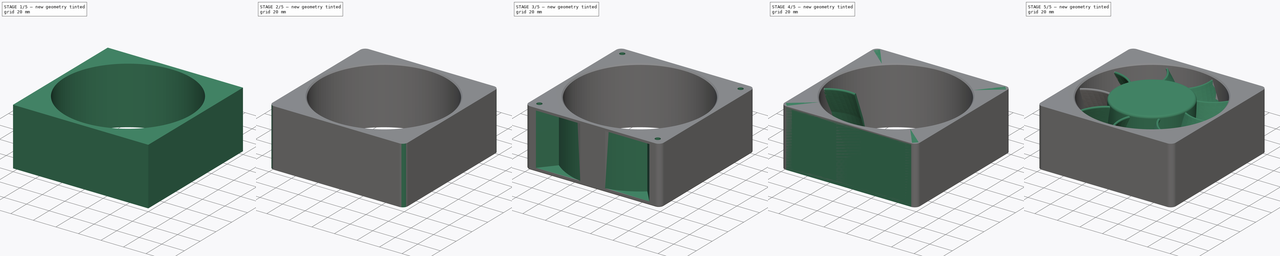
[diagram: build sequence overview — one tinted view per stage of 5, left to right]
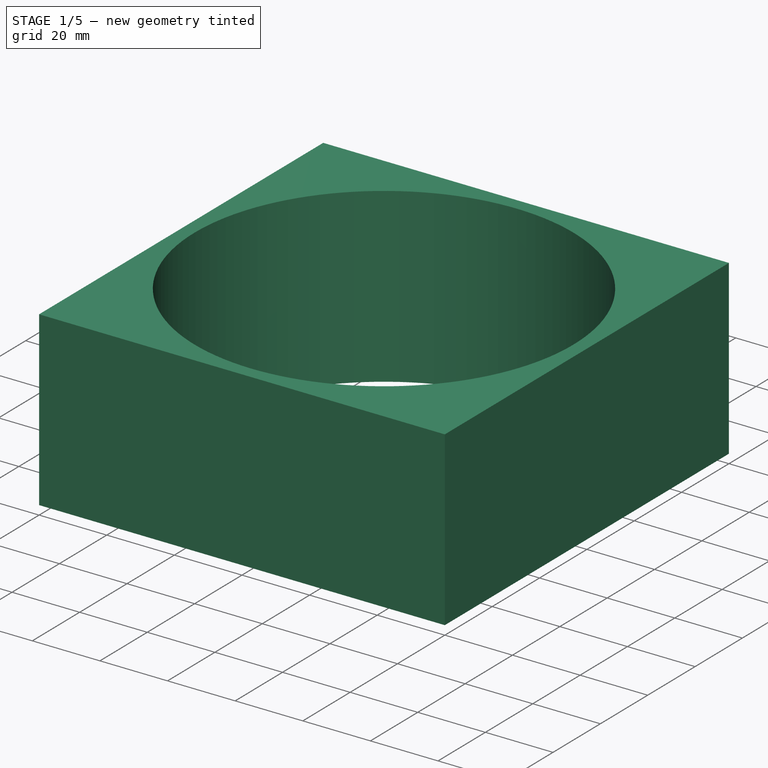
[diagram: stage 1 of 5 — iso view after this stage's code; geometry added in this stage tinted green]
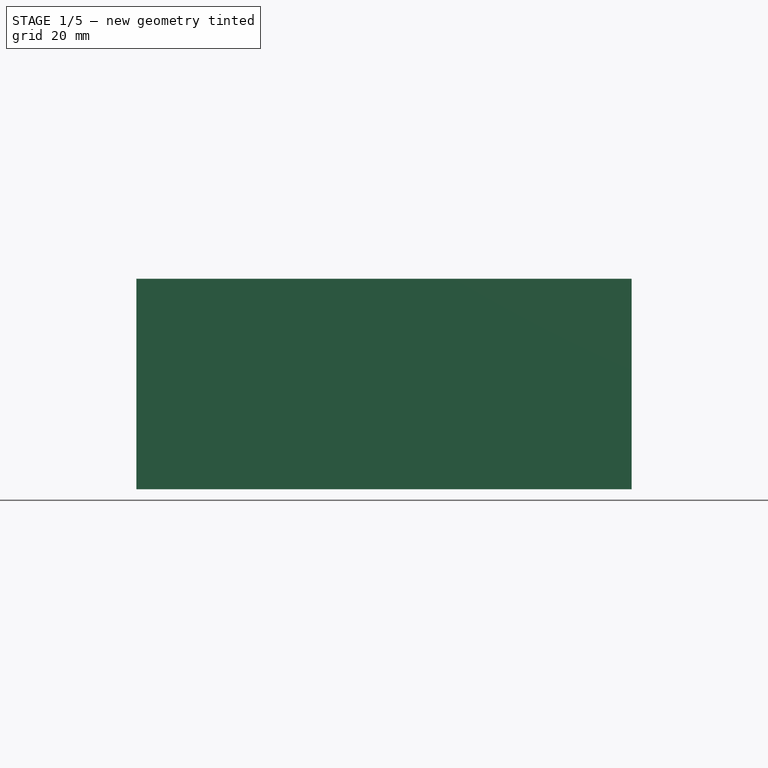
[diagram: stage 1 of 5 — front view after this stage's code; geometry added in this stage tinted green]
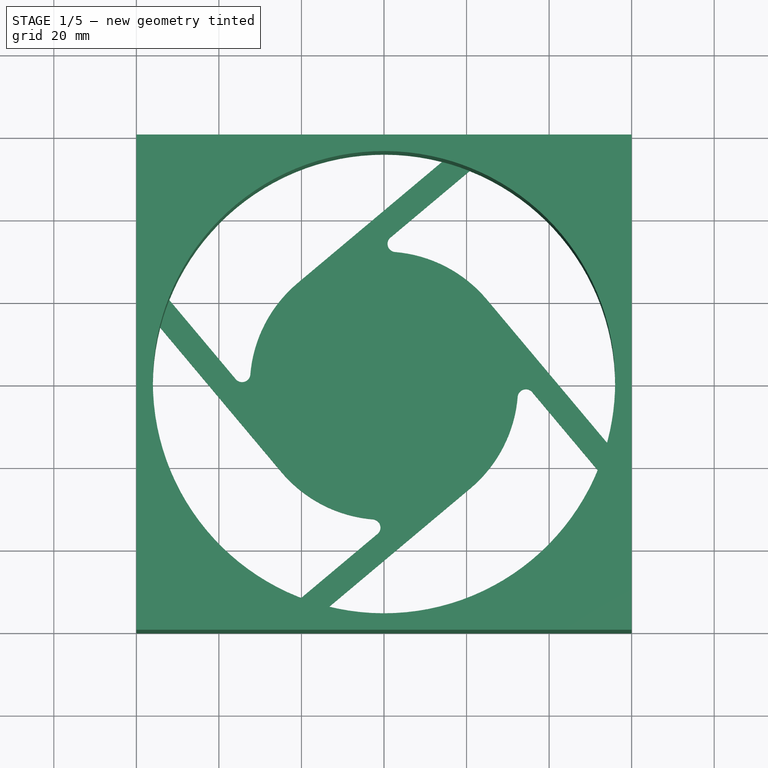
[diagram: stage 1 of 5 — top view after this stage's code; geometry added in this stage tinted green]
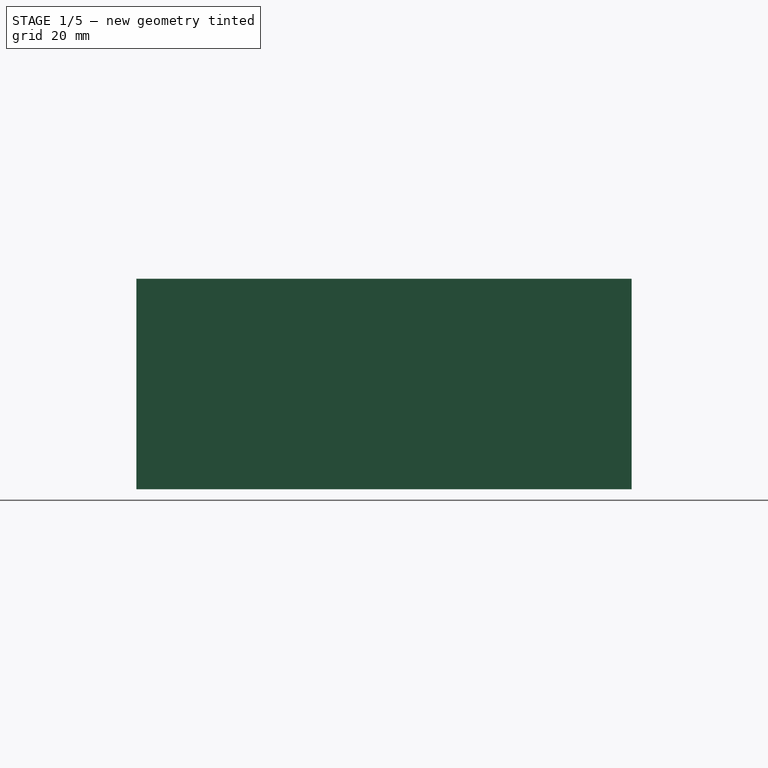
[diagram: stage 1 of 5 — right view after this stage's code; geometry added in this stage tinted green]
FCSTD DOCUMENT  (FreeCAD 0.21R33771 (Git))
Label: Fan_Parametric
License: All rights reserved
LicenseURL: http://en.wikipedia.org/wiki/All_rights_reserved
objects: Sketcher::SketchObject×10, PartDesign::Fillet×5, PartDesign::Body×3, PartDesign::Pocket×3, PartDesign::MultiTransform×3, PartDesign::Pad×2, PartDesign::Plane×2, PartDesign::Groove×2, PartDesign::PolarPattern×2, Spreadsheet::Sheet×1, PartDesign::AdditivePipe×1, Part::FeaturePython×1, PartDesign::Chamfer×1, PartDesign::Mirrored×1
note: 50 computed .brp shape members not serialized (recipe doc carries the construction recipe); baked Part::Feature solids carry a one-line shape summary decoded from their .brp

FEATURE [Sketcher::SketchObject] Sketch009  label="Sketch_OuterFrame"
  FullyConstrained = true
  MapMode = 5
  Support = -> [XY_Plane003]
  expr: Constraints[9] = Spreadsheet.Lh
  sketch-geometry (4):
    g0: LineSegment StartX=-60 StartY=60 StartZ=0 EndX=60 EndY=60 EndZ=0
    g1: LineSegment StartX=60 StartY=60 StartZ=0 EndX=60 EndY=-60 EndZ=0
    g2: LineSegment StartX=60 StartY=-60 StartZ=0 EndX=-60 EndY=-60 EndZ=0
    g3: LineSegment StartX=-60 StartY=-60 StartZ=0 EndX=-60 EndY=60 EndZ=0
  constraints (10):
    c: Coincident(g0,g1)
    c: Coincident(g1,g2)
    c: Coincident(g2,g3)
    c: Coincident(g3,g0)
    c: Horizontal(g2)
    c: Vertical(g3)
    c: Equal(g0,g1)
    c: Symmetric(g0,g1,g-1)
    c: Symmetric(g0,g0,g-2)
    c: DistanceY(g1,g1) = 120
FEATURE [PartDesign::Pad] Pad001  label="Pad__OuterFrame"
  AllowMultiFace = false
  Direction = (0,0,1)
  Length = 50
  Length2 = 1
  Profile = -> Sketch009
  Type = 4
FEATURE [Sketcher::SketchObject] Sketch010  label="Sketch_InnerCylinder"
  FullyConstrained = true
  MapMode = 5
  Placement = pos=(0,0,50) rot=(0,0,1;0rad)
  Support = -> [Pad001]
  expr: Constraints[1] = Spreadsheet.Dom
  sketch-geometry (1):
    g0: Circle CenterX=0 CenterY=0 CenterZ=0 NormalX=0 NormalY=0 NormalZ=1 AngleXU=0 Radius=56
  constraints (2):
    c: Coincident(g0,g-1)
    c: Diameter(g0) = 112
FEATURE [PartDesign::Pocket] Pocket  label="Pocket_InnerCylinder"
  AllowMultiFace = false
  BaseFeature = -> Pad001
  Direction = (0,0,-1)
  Length = 49
  Length2 = 100
  Profile = -> Sketch010
  ReferenceAxis = -> Sketch010 [N_Axis]
  Type = 0
  expr: Length = <<Pad__OuterFrame>>.Length - 1 mm
FEATURE [Sketcher::SketchObject] Sketch011  label="Sketch_FrameRear"
  FullyConstrained = true
  MapMode = 5
  Placement = pos=(0,0,-1) rot=(1,0,0;3.14159rad)
  Support = -> [Pocket]
  expr: Constraints[1] = Spreadsheet.Dom
  expr: Constraints[20] = Spreadsheet.Lh / 20
  expr: Constraints[3] = Spreadsheet.Di
  sketch-geometry (8):
    g0: Circle CenterX=0 CenterY=0 CenterZ=0 NormalX=0 NormalY=0 NormalZ=1 AngleXU=0 Radius=56
    g1: Circle CenterX=0 CenterY=0 CenterZ=0 NormalX=0 NormalY=0 NormalZ=1 AngleXU=0 Radius=32.5
    g2: LineSegment StartX=20.8906 StartY=24.8964 StartZ=0 EndX=-14.0443 EndY=54.2103 EndZ=0
    g3: ArcOfCircle CenterX=0 CenterY=0 CenterZ=0 NormalX=0 NormalY=0 NormalZ=1 AngleXU=0 Radius=56 StartAngle=0.379729 EndAngle=1.82429
    g4: ArcOfCircle CenterX=0 CenterY=0 CenterZ=0 NormalX=0 NormalY=0 NormalZ=1 AngleXU=0 Radius=32.5 StartAngle=0.0829606 EndAngle=0.872663
    g5: LineSegment StartX=52.0109 StartY=20.7574 StartZ=0 EndX=35.9134 EndY=1.57328 EndZ=0
    g6: ArcOfCircle CenterX=34.3813 CenterY=2.85886 CenterZ=0 NormalX=0 NormalY=0 NormalZ=1 AngleXU=0 Radius=2 StartAngle=3.22455 EndAngle=5.58505
    g7: LineSegment StartX=24.8964 StartY=-20.8907 StartZ=0 EndX=54.2103 EndY=14.0443 EndZ=0
  constraints (22):
    c: Coincident(g0,g-1)
    c: Diameter(g0) = 112
    c: Coincident(g1,g-1)
    c: Diameter(g1) = 65
    c: PointOnObject(g2,g1)
    c: PointOnObject(g2,g0)
    c: Tangent(g2,g1)
    c: Angle(g2,g-1) = 0.698132
    c: Coincident(g3,g-1)
    c: Coincident(g3,g2)
    c: Coincident(g4,g3)
    c: Coincident(g4,g2)
    c: Coincident(g3,g5)
    c: Tangent(g5,g6) = 1.5708
    c: Tangent(g6,g4) = 1.5708
    c: PointOnObject(g7,g1)
    c: PointOnObject(g7,g0)
    c: Tangent(g7,g1)
    c: Angle(g2,g7) = 1.5708
    c: Parallel(g5,g7)
    c: Distance(g5,g7) = 6
    c: Radius(g6) = 2
FEATURE [PartDesign::Pocket] Pocket001  label="Pocket_FrameRear"
  AllowMultiFace = false
  BaseFeature = -> Pocket
  Direction = (0,0,1)
  Length = 7
  Length2 = 96
  Midplane = true
  Profile = -> Sketch011
  Type = 1
FEATURE [PartDesign::PolarPattern] PolarPattern
  Angle = 360
  Axis = -> Sketch011 [N_Axis]
  Occurrences = 4
FEATURE [PartDesign::MultiTransform] MultiTransform
  BaseFeature = -> Pocket001
  Originals = -> [Pocket001]
  Transformations = -> [PolarPattern]
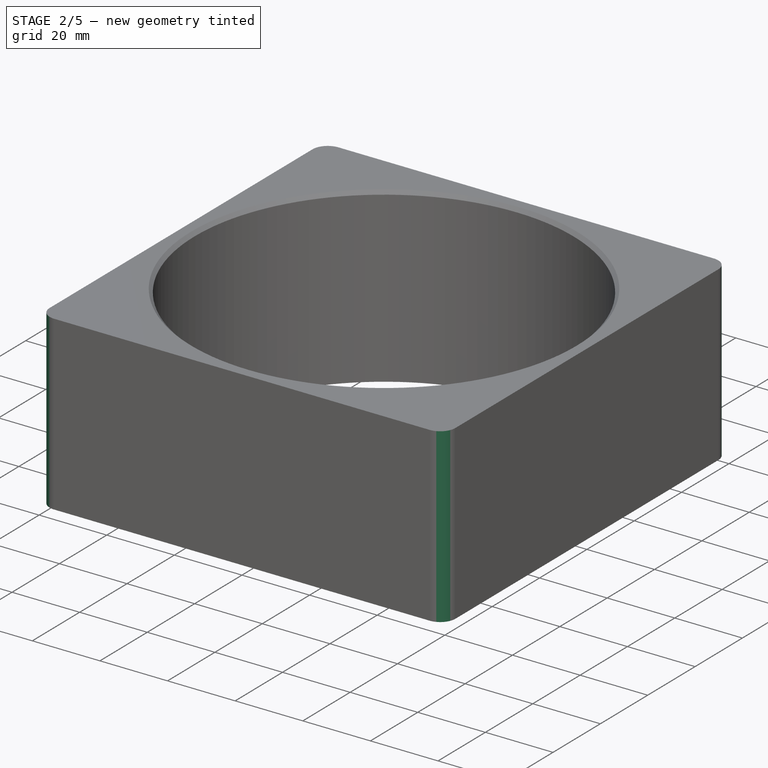
[diagram: stage 2 of 5 — iso view after this stage's code; geometry added in this stage tinted green]
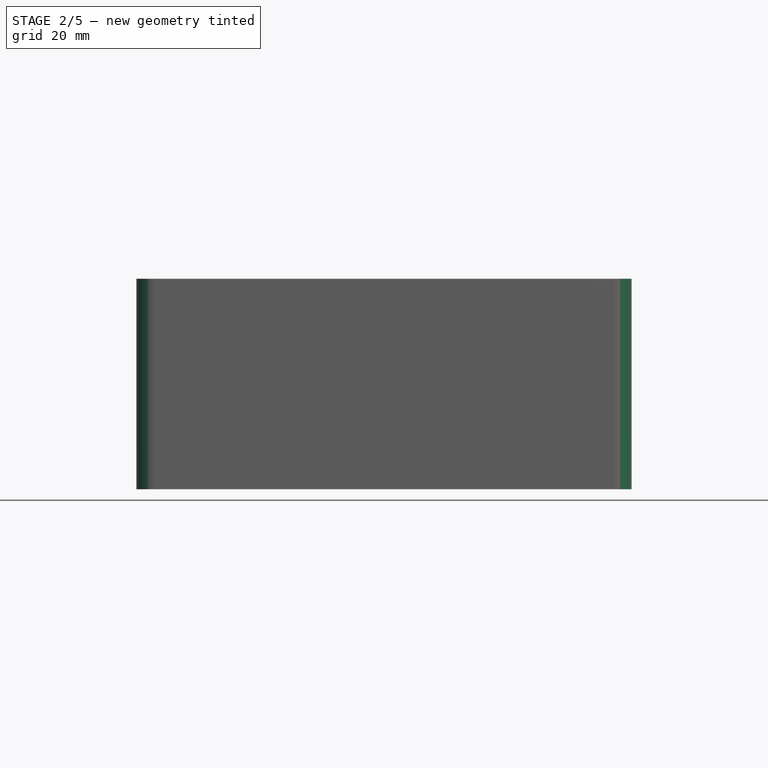
[diagram: stage 2 of 5 — front view after this stage's code; geometry added in this stage tinted green]
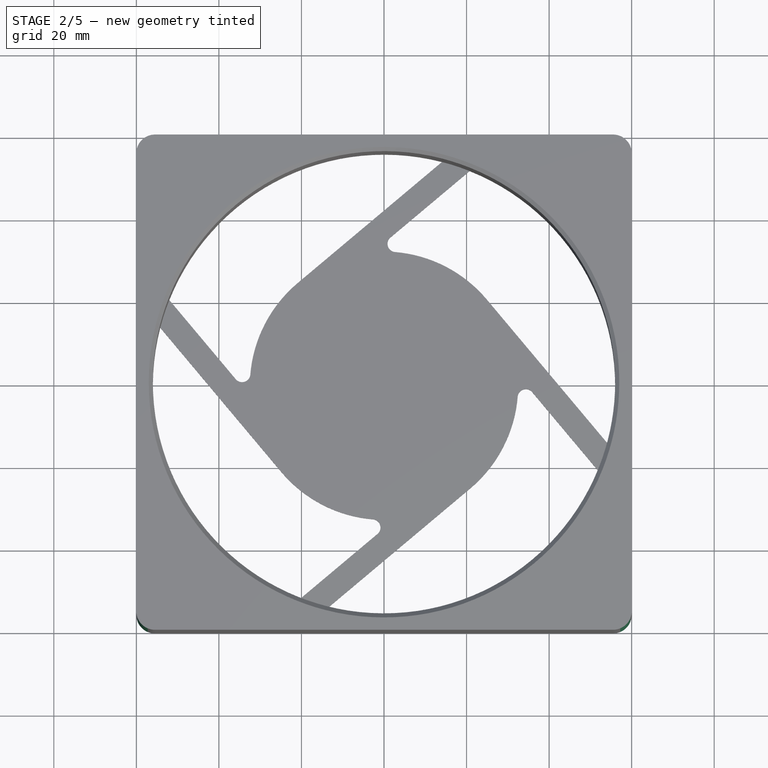
[diagram: stage 2 of 5 — top view after this stage's code; geometry added in this stage tinted green]
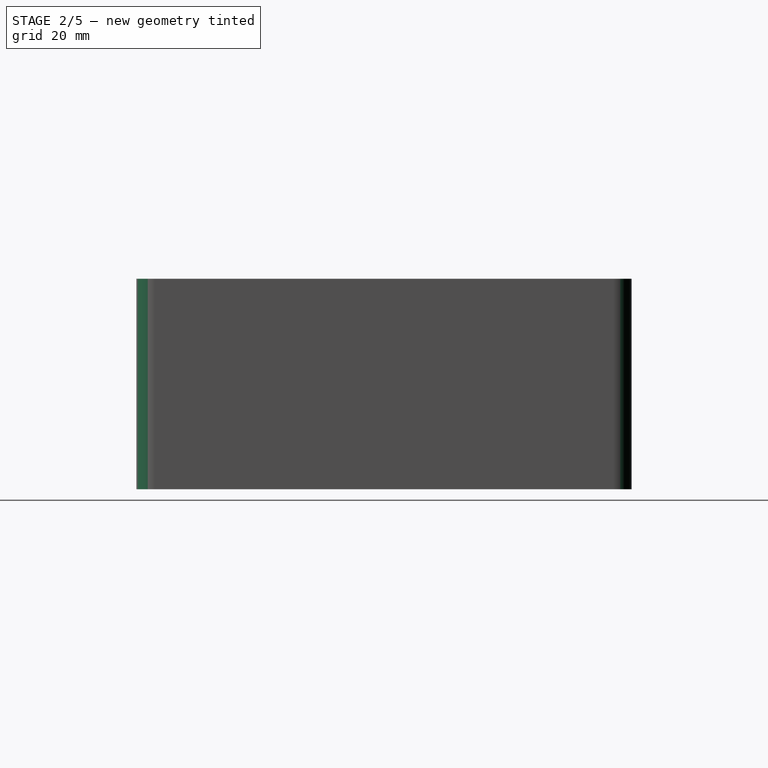
[diagram: stage 2 of 5 — right view after this stage's code; geometry added in this stage tinted green]
FEATURE [PartDesign::Fillet] Fillet001  label="Fillet_InnerCylRear"
  Base = -> MultiTransform [Edge24,Edge23,Edge22,Edge26,Edge15,Edge13,Edge19,Edge21,Edge31,Edge29,Edge14,Edge12,Edge17,Edge18,Edge28,Edge27]
  BaseFeature = -> MultiTransform
  Radius = 0.2
  SupportTransform = false
  UseAllEdges = false
FEATURE [PartDesign::Fillet] Fillet002  label="Fillet_OuterEdges"
  Base = -> Fillet001 [Edge46,Edge51,Edge49,Edge47]
  BaseFeature = -> Fillet001
  Radius = 4.5
  SupportTransform = false
  UseAllEdges = false
  expr: Radius = Spreadsheet.Ddh
FEATURE [PartDesign::Chamfer] Chamfer  label="Chamfer_InnerCylFront"
  Angle = 45
  Base = -> Fillet002 [Edge87,Edge104,Edge105,Edge106,Edge107,Edge108,Edge109,Edge102,Edge110,Edge103]
  BaseFeature = -> Fillet002
  ChamferType = 0
  FlipDirection = false
  Size = 1
  Size2 = 1
  SupportTransform = false
  UseAllEdges = false
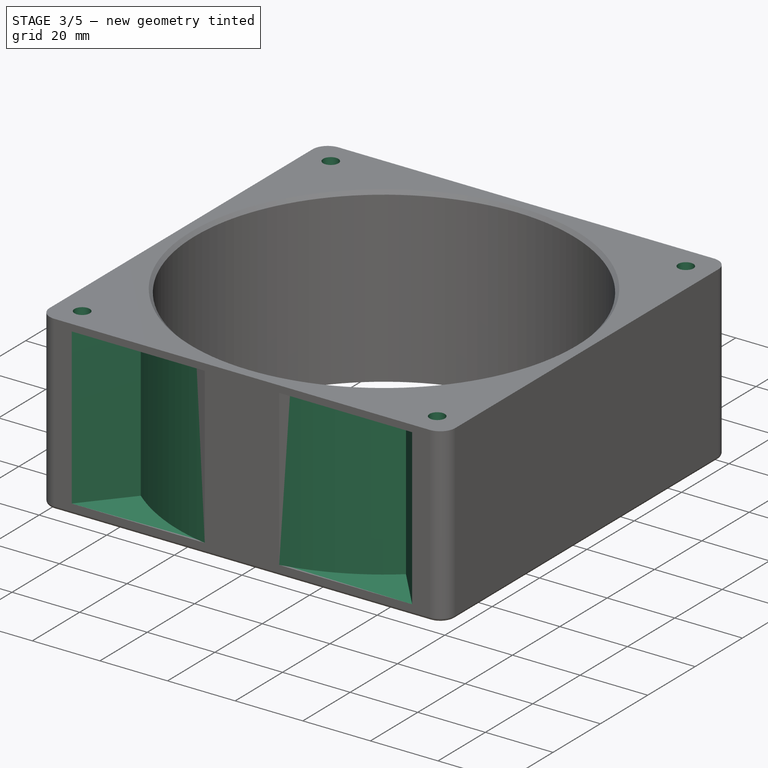
[diagram: stage 3 of 5 — iso view after this stage's code; geometry added in this stage tinted green]
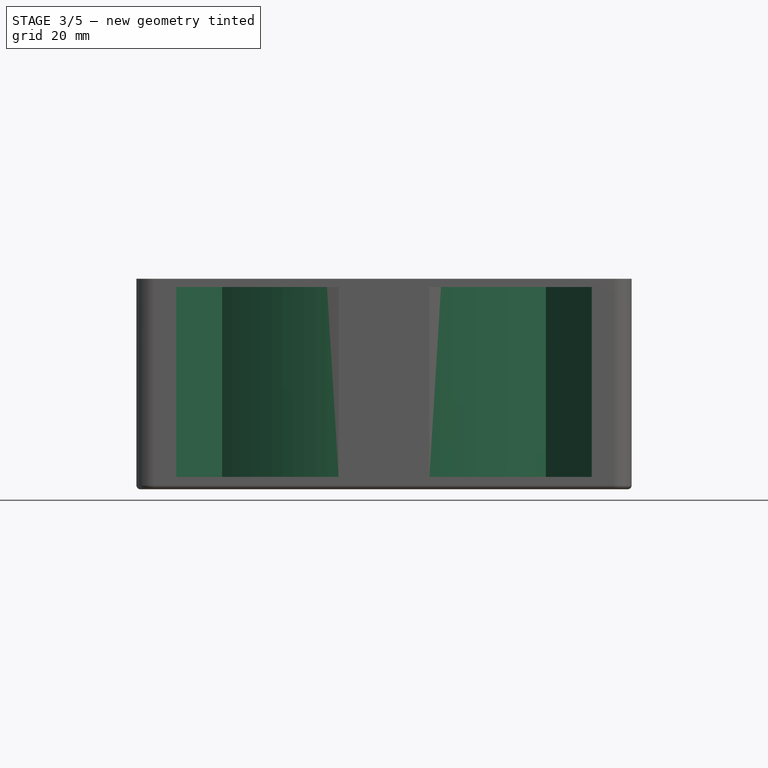
[diagram: stage 3 of 5 — front view after this stage's code; geometry added in this stage tinted green]
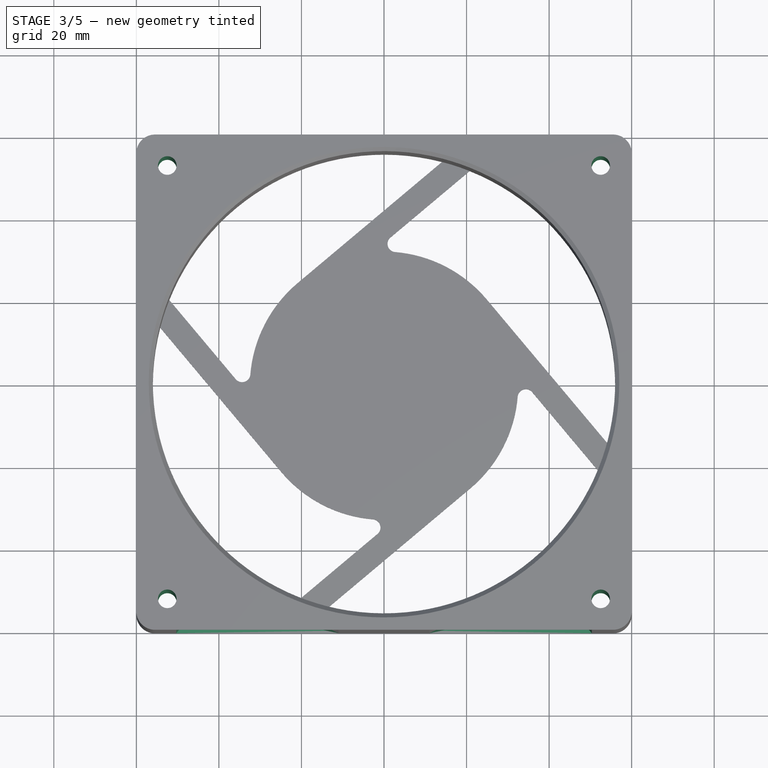
[diagram: stage 3 of 5 — top view after this stage's code; geometry added in this stage tinted green]
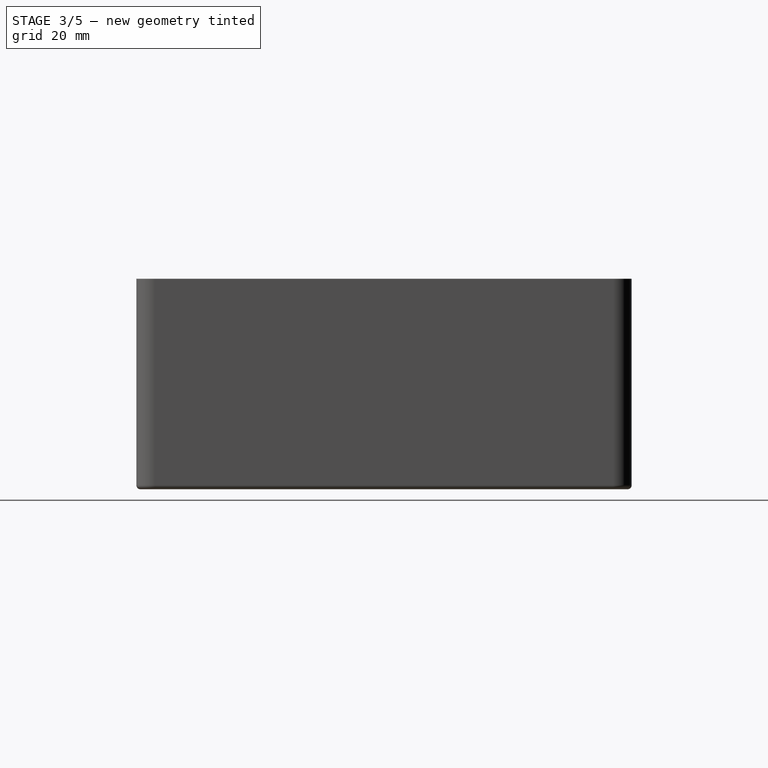
[diagram: stage 3 of 5 — right view after this stage's code; geometry added in this stage tinted green]
FEATURE [PartDesign::Fillet] Fillet004  label="Fillet_OuterFrameRear"
  Base = -> Chamfer [Edge43,Edge39,Edge36,Edge41,Edge45,Edge49,Edge51,Edge47]
  BaseFeature = -> Chamfer
  Radius = 1
  SupportTransform = false
  UseAllEdges = false
FEATURE [Sketcher::SketchObject] Sketch012  label="Sketch_MountHoles"
  FullyConstrained = true
  MapMode = 5
  Placement = pos=(0,0,-1) rot=(1,0,0;3.14159rad)
  Support = -> [Fillet004]
  expr: Constraints[1] = Spreadsheet.Ldh
  expr: Constraints[2] = Spreadsheet.Ldh / 2
  expr: Constraints[4] = Spreadsheet.Ddh
  sketch-geometry (2):
    g0: Circle CenterX=-52.5 CenterY=52.5 CenterZ=0 NormalX=0 NormalY=0 NormalZ=1 AngleXU=0 Radius=2.25
    g1: Circle CenterX=52.5 CenterY=52.5 CenterZ=0 NormalX=0 NormalY=0 NormalZ=1 AngleXU=0 Radius=2.25
  constraints (5):
    c: Symmetric(g0,g1,g-2)
    c: DistanceX(g0,g1) = 105
    c: DistanceY(g-1,g1) = 52.5
    c: Equal(g0,g1)
    c: Diameter(g0) = 4.5
FEATURE [PartDesign::Pocket] Pocket002  label="Pocket_MountHoles"
  AllowMultiFace = false
  BaseFeature = -> Fillet004
  Direction = (0,0,1)
  Length = 5
  Length2 = 100
  Profile = -> Sketch012
  Type = 1
FEATURE [PartDesign::Mirrored] Mirrored  label="Mirrored_MountHoles"
  MirrorPlane = -> XZ_Plane003
FEATURE [PartDesign::MultiTransform] MultiTransform001  label="MultiTransform_MountHoles"
  BaseFeature = -> Pocket002
  Originals = -> [Pocket002]
  Transformations = -> [Mirrored]
FEATURE [Sketcher::SketchObject] Sketch013  label="Sketch_OuterSideGroove"
  FullyConstrained = true
  MapMode = 5
  Placement = pos=(0,0,0) rot=(0.57735,0.57735,0.57735;2.0944rad)
  Support = -> [YZ_Plane003]
  expr: Constraints[11] = <<Pad__OuterFrame>>.Length / 2
  expr: Constraints[12] = Spreadsheet.Lh / 2 + 1
  expr: Constraints[14] = <<Spreadsheet_Fan_dim>>.Lh / 2 * 1.5
  expr: Constraints[8] = <<Pad__OuterFrame>>.Length - 4 mm
  sketch-geometry (5):
    g0: LineSegment StartX=-90 StartY=48 StartZ=0 EndX=-61 EndY=48 EndZ=0
    g1: LineSegment StartX=-61 StartY=48 StartZ=0 EndX=-61 EndY=2 EndZ=0
    g2: LineSegment StartX=-61 StartY=2 StartZ=0 EndX=-90 EndY=2 EndZ=0
    g3: LineSegment StartX=-90 StartY=2 StartZ=0 EndX=-90 EndY=48 EndZ=0
    g4: LineSegment StartX=-90 StartY=25 StartZ=0 EndX=-61 EndY=25 EndZ=0
  constraints (15):
    c: Coincident(g0,g1)
    c: Coincident(g1,g2)
    c: Coincident(g2,g3)
    c: Coincident(g3,g0)
    c: Horizontal(g0)
    c: Horizontal(g2)
    c: Vertical(g1)
    c: Vertical(g3)
    c: DistanceY(g3,g3) = 46
    c: PointOnObject(g4,g3)
    c: Symmetric(g0,g2,g4)
    c: DistanceY(g-1,g4) = 25
    c: DistanceX(g1,g-1) = 61
    c: PointOnObject(g4,g1)
    c: DistanceX(g0,g-1) = 90
FEATURE [PartDesign::Groove] Groove001  label="Groove_OuterSide"
  AllowMultiFace = false
  Angle = 80
  Axis = (-2e-16,3e-16,1)
  Base = (0,0,0)
  BaseFeature = -> MultiTransform001
  Midplane = true
  Profile = -> Sketch013
  ReferenceAxis = -> Sketch013 [V_Axis]
  expr: Angle = <<Spreadsheet_Fan_dim>>.GrAngle
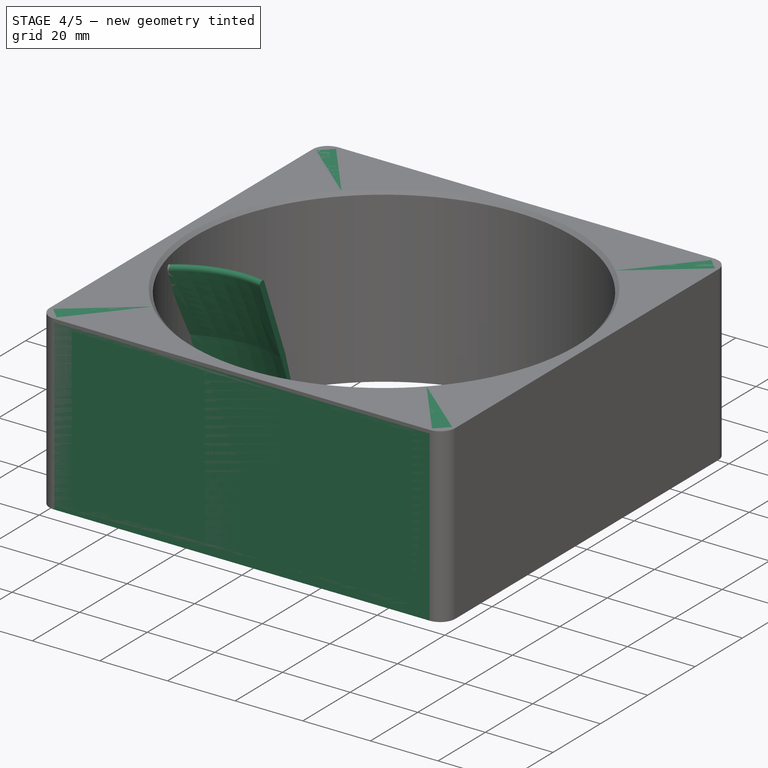
[diagram: stage 4 of 5 — iso view after this stage's code; geometry added in this stage tinted green]
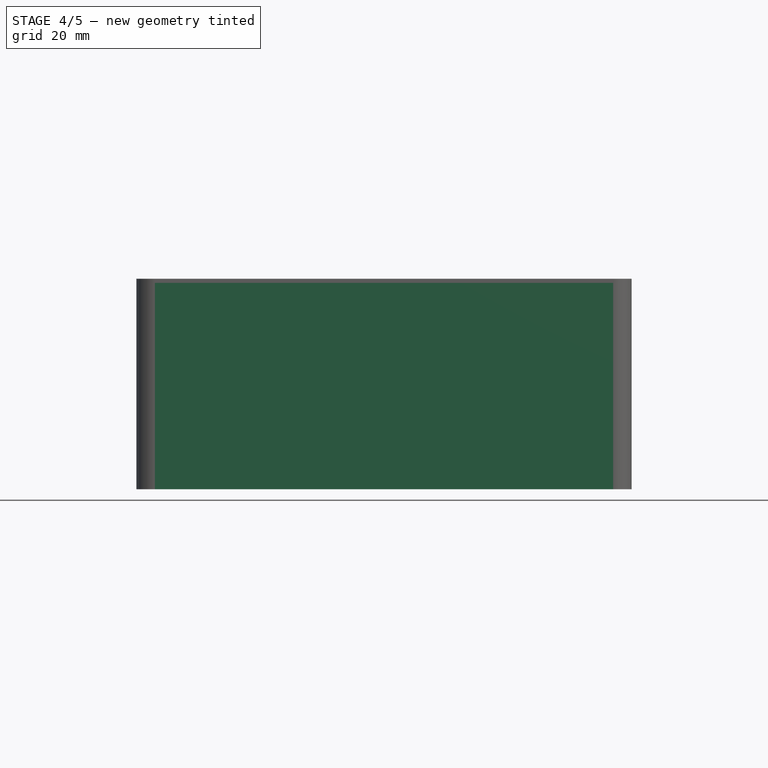
[diagram: stage 4 of 5 — front view after this stage's code; geometry added in this stage tinted green]
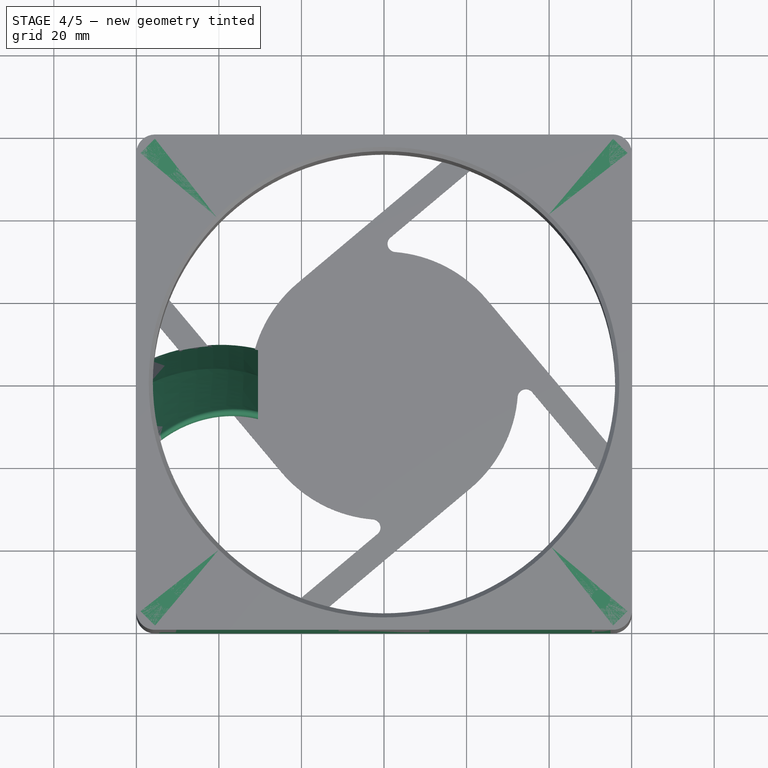
[diagram: stage 4 of 5 — top view after this stage's code; geometry added in this stage tinted green]
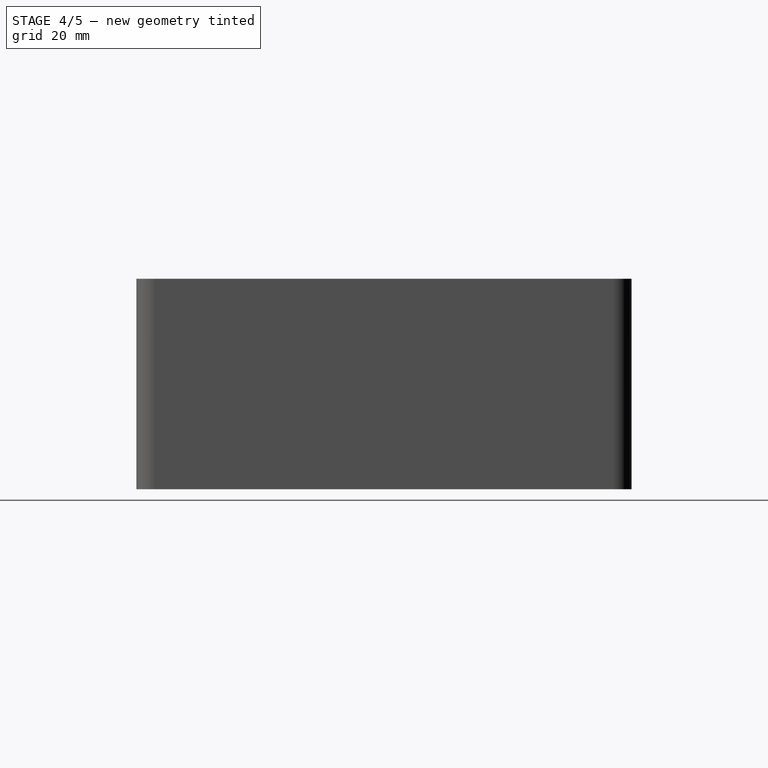
[diagram: stage 4 of 5 — right view after this stage's code; geometry added in this stage tinted green]
FEATURE [PartDesign::Body] Body  label="Body_inner_Fan_Motor_Housing"
  Group = -> [Sketch,Pad,Fillet]
  Origin = -> Origin
  Tip = -> Fillet
FEATURE [PartDesign::Plane] DatumPlane  label="DatumPlane_inner_Blade_Sketch"
  AttachmentOffset = pos=(0,0,-30.54) rot=(0,0,1;0rad)
  Length = 60
  MapMode = 5
  Placement = pos=(-30.54,6.8e-15,-6.8e-15) rot=(0.57735,0.57735,0.57735;2.0944rad)
  ResizeMode = 0
  Support = -> [YZ_Plane002]
  Width = 60
  expr: .AttachmentOffset.Base.z = -Spreadsheet.di
FEATURE [PartDesign::Plane] DatumPlane001  label="DatumPlane_outer_Blade_Sketch"
  AttachmentOffset = pos=(0,0,-57) rot=(0,0,1;0rad)
  Length = 60
  MapMode = 5
  Placement = pos=(-57,1.27e-14,-1.27e-14) rot=(0.57735,0.57735,0.57735;2.0944rad)
  ResizeMode = 0
  Support = -> [YZ_Plane002]
  Width = 60
  expr: .AttachmentOffset.Base.z = -Spreadsheet.do
FEATURE [Sketcher::SketchObject] Sketch005  label="Sketch_inner_Blade"
  FullyConstrained = true
  MapMode = 5
  Placement = pos=(-30.54,6.8e-15,-6.8e-15) rot=(0.57735,0.57735,0.57735;2.0944rad)
  Support = -> [DatumPlane]
  expr: Constraints[10] = Spreadsheet.hi * 0.8
  expr: Constraints[18] = Spreadsheet.Hi / 2
  expr: Constraints[9] = Spreadsheet.Hi
  sketch-geometry (9):
    g0: LineSegment StartX=-8.89252 StartY=0 StartZ=0 EndX=8.89252 EndY=0 EndZ=0
    g1: LineSegment StartX=8.89252 StartY=0 StartZ=0 EndX=8.89252 EndY=47 EndZ=0
    g2: LineSegment StartX=8.89252 StartY=47 StartZ=0 EndX=-8.89252 EndY=47 EndZ=0
    g3: LineSegment StartX=-8.89252 StartY=47 StartZ=0 EndX=-8.89252 EndY=0 EndZ=0
    g4: LineSegment StartX=8.89252 StartY=0 StartZ=0 EndX=0 EndY=23.5 EndZ=0
    g5: LineSegment StartX=0 StartY=23.5 StartZ=0 EndX=-8.82144 EndY=45.6297 EndZ=0
    g6: ArcOfCircle CenterX=-7.89252 CenterY=46 CenterZ=0 NormalX=0 NormalY=0 NormalZ=1 AngleXU=0 Radius=1 StartAngle=0.373532 EndAngle=3.52091
    g7: LineSegment StartX=-6.96148 StartY=46.3649 StartZ=0 EndX=2 EndY=23.5 EndZ=0
    g8: LineSegment StartX=2 StartY=23.5 StartZ=0 EndX=8.89252 EndY=0 EndZ=0
  constraints (24):
    c: Coincident(g0,g1)
    c: Coincident(g1,g2)
    c: Coincident(g2,g3)
    c: Coincident(g3,g0)
    c: Horizontal(g2)
    c: Vertical(g1)
    c: Vertical(g3)
    c: PointOnObject(g0,g-1)
    c: Symmetric(g0,g0,g-2)
    c: DistanceY(g1,g1) = 47
    c: DistanceX(g0,g0) = 17.785
    c: Tangent(g5,g6) = 1.5708
    c: Tangent(g6,g7) = 1.5708
    c: Coincident(g8,g4)
    c: Coincident(g5,g4)
    c: Coincident(g7,g8)
    c: Horizontal(g4,g7)
    c: DistanceX(g4,g7) = 2
    c: DistanceY(g4,g4) = 23.5
    c: Diameter(g6) = 2
    c: Coincident(g4,g0)
    c: PointOnObject(g4,g-2)
    c: DistanceY(g6,g2) = 1
    c: DistanceX(g2,g6) = 1
FEATURE [Sketcher::SketchObject] Sketch006  label="Sketch_outer_Blade"
  FullyConstrained = true
  MapMode = 5
  Placement = pos=(-57,1.27e-14,-1.27e-14) rot=(0.57735,0.57735,0.57735;2.0944rad)
  Support = -> [DatumPlane001]
  expr: Constraints[19] = Spreadsheet.Hi / 2
  expr: Constraints[21] = Spreadsheet.ho / 4
  expr: Constraints[8] = Spreadsheet.Hi
  expr: Constraints[9] = Spreadsheet.ho * 0.8
  sketch-geometry (9):
    g0: LineSegment StartX=-16.597 StartY=0 StartZ=0 EndX=16.597 EndY=0 EndZ=0
    g1: LineSegment StartX=16.597 StartY=0 StartZ=0 EndX=16.597 EndY=47 EndZ=0
    g2: LineSegment StartX=16.597 StartY=47 StartZ=0 EndX=-16.597 EndY=47 EndZ=0
    g3: LineSegment StartX=-16.597 StartY=47 StartZ=0 EndX=-16.597 EndY=0 EndZ=0
    g4: LineSegment StartX=6.22389 StartY=0 StartZ=0 EndX=0 EndY=23.5 EndZ=0
    g5: LineSegment StartX=0 StartY=23.5 StartZ=0 EndX=-14.7549 EndY=46.5393 EndZ=0
    g6: ArcOfCircle CenterX=-15.597 CenterY=46 CenterZ=0 NormalX=0 NormalY=0 NormalZ=1 AngleXU=0 Radius=1 StartAngle=0.569614 EndAngle=3.70716
    g7: LineSegment StartX=-16.4413 StartY=45.4641 StartZ=0 EndX=-2.5 EndY=23.5 EndZ=0
    g8: LineSegment StartX=-2.5 StartY=23.5 StartZ=0 EndX=6.22389 EndY=0 EndZ=0
  constraints (25):
    c: Coincident(g0,g1)
    c: Coincident(g1,g2)
    c: Coincident(g2,g3)
    c: Coincident(g3,g0)
    c: Horizontal(g0)
    c: Vertical(g1)
    c: Vertical(g3)
    c: Symmetric(g1,g2,g-2)
    c: DistanceY(g1,g1) = 47
    c: DistanceX(g0,g0) = 33.1941
    c: Coincident(g4,g5)
    c: Tangent(g5,g6) = -1.5708
    c: Tangent(g6,g7) = -1.5708
    c: Coincident(g7,g8)
    c: Coincident(g8,g4)
    c: Diameter(g6) = 2
    c: DistanceY(g6,g2) = 1
    c: DistanceX(g2,g6) = 1
    c: DistanceX(g7,g4) = 2.5
    c: DistanceY(g4,g7) = 23.5
    c: PointOnObject(g4,g0)
    c: DistanceX(g4,g0) = 10.3732
    c: PointOnObject(g0,g-1)
    c: PointOnObject(g4,g-2)
    c: Horizontal(g4,g7)
FEATURE [Sketcher::SketchObject] Sketch007
  FullyConstrained = true
  MapMode = 5
  Placement = pos=(0,0,0) rot=(0.57735,0.57735,0.57735;2.0944rad)
  Support = -> [YZ_Plane002]
  expr: Constraints[8] = Spreadsheet.Hi * 2
  expr: Constraints[9] = Spreadsheet.Do / 2
  sketch-geometry (4):
    g0: LineSegment StartX=57 StartY=47 StartZ=0 EndX=77 EndY=47 EndZ=0
    g1: LineSegment StartX=77 StartY=47 StartZ=0 EndX=77 EndY=-47 EndZ=0
    g2: LineSegment StartX=77 StartY=-47 StartZ=0 EndX=57 EndY=-47 EndZ=0
    g3: LineSegment StartX=57 StartY=-47 StartZ=0 EndX=57 EndY=47 EndZ=0
  constraints (11):
    c: Coincident(g0,g1)
    c: Coincident(g1,g2)
    c: Coincident(g2,g3)
    c: Coincident(g3,g0)
    c: Horizontal(g0)
    c: Horizontal(g2)
    c: Vertical(g1)
    c: Symmetric(g0,g2,g-1)
    c: DistanceY(g1,g1) = 94
    c: DistanceX(g-1,g2) = 57
    c: DistanceX(g0,g0) = 20
FEATURE [Sketcher::SketchObject] Sketch008  label="Sketch_Path_inner_outer"
  ExternalGeometry = -> [Sketch005,Sketch006]
  FullyConstrained = true
  MapMode = 5
  Support = -> [XY_Plane002]
  expr: Constraints[2] = (<<Spreadsheet_Fan_dim>>.do - <<Spreadsheet_Fan_dim>>.di) * 1.5
  sketch-geometry (1):
    g0: ArcOfCircle CenterX=-30.54 CenterY=-30.7975 CenterZ=0 NormalX=0 NormalY=0 NormalZ=1 AngleXU=0 Radius=39.69 StartAngle=1.5708 EndAngle=2.30052
  constraints (4):
    c: Vertical(g0,g0)
    c: Coincident(g0,g-3)
    c: Radius(g0) = 39.69
    c: Vertical(g0,g-5)
FEATURE [PartDesign::AdditivePipe] AdditivePipe
  AllowMultiFace = false
  AuxilleryCurvelinear = true
  AuxillerySpineTangent = false
  Binormal = (0,0,0)
  Mode = 0
  Placement = pos=(-30.54,6.8e-15,-6.8e-15) rot=(0.57735,0.57735,0.57735;2.0944rad)
  Profile = -> Sketch005
  Sections = -> [Sketch006]
  Spine = -> Sketch008
  SpineTangent = false
  Transformation = 1
  Transition = 0
FEATURE [PartDesign::Fillet] Fillet003  label="Fillet_OuterFrameFront"
  Base = -> Chamfer [Edge13,Edge15,Edge17,Edge11,Edge10,Edge12,Edge14,Edge16]
  BaseFeature = -> Chamfer
  Radius = 1
  SupportTransform = false
  UseAllEdges = false
FEATURE [PartDesign::PolarPattern] PolarPattern001  label="PolarPattern_OuterSideGroove"
  Angle = 360
  Axis = -> Z_Axis003
  Occurrences = 4
FEATURE [PartDesign::MultiTransform] MultiTransform002  label="MultiTransform_OuterSideGroove"
  BaseFeature = -> Groove001
  Originals = -> [Groove001]
  Transformations = -> [PolarPattern001]
FEATURE [PartDesign::Body] Body003  label="Housing"
  Group = -> [Sketch009,Pad001,Sketch010,Pocket,Sketch011,Pocket001,MultiTransform,PolarPattern,Fillet001,Fillet002,Chamfer,Fillet003,Fillet004,Sketch012,Pocket002,MultiTransform001,Mirrored,Sketch013,Groove001,MultiTransform002,PolarPattern001]
  Origin = -> Origin003
  Tip = -> MultiTransform002
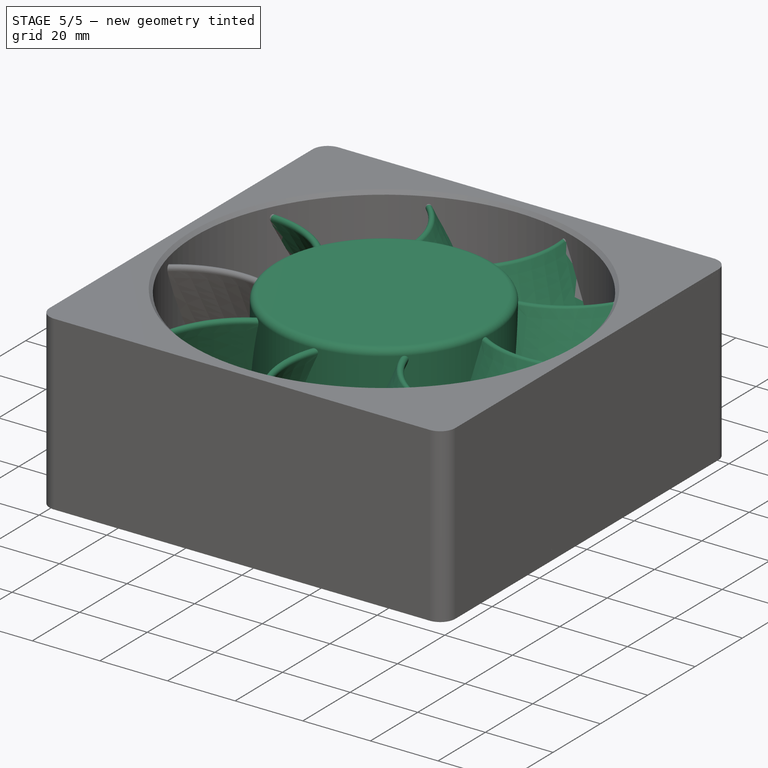
[diagram: stage 5 of 5 — iso view after this stage's code; geometry added in this stage tinted green]
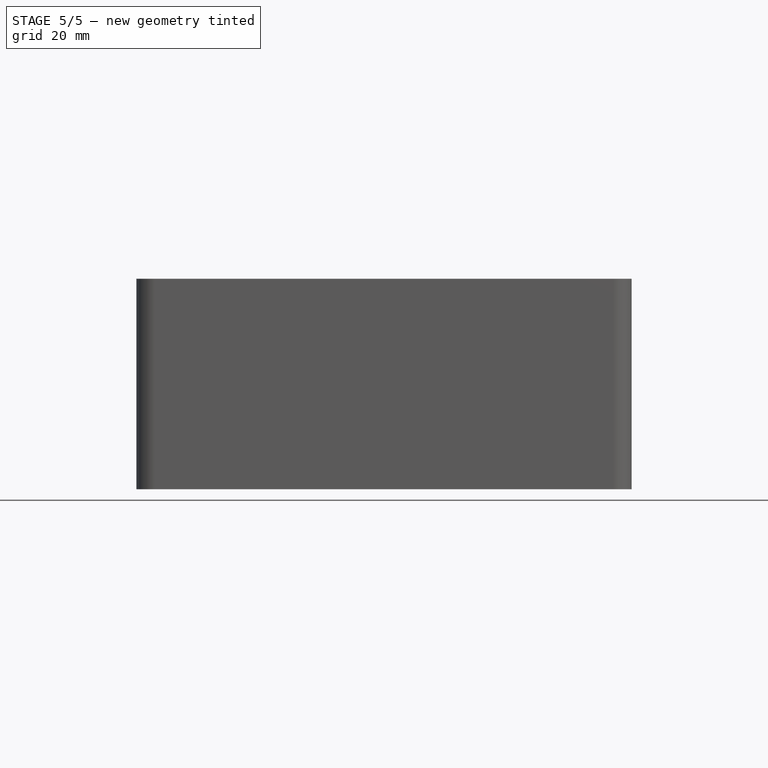
[diagram: stage 5 of 5 — front view after this stage's code; geometry added in this stage tinted green]
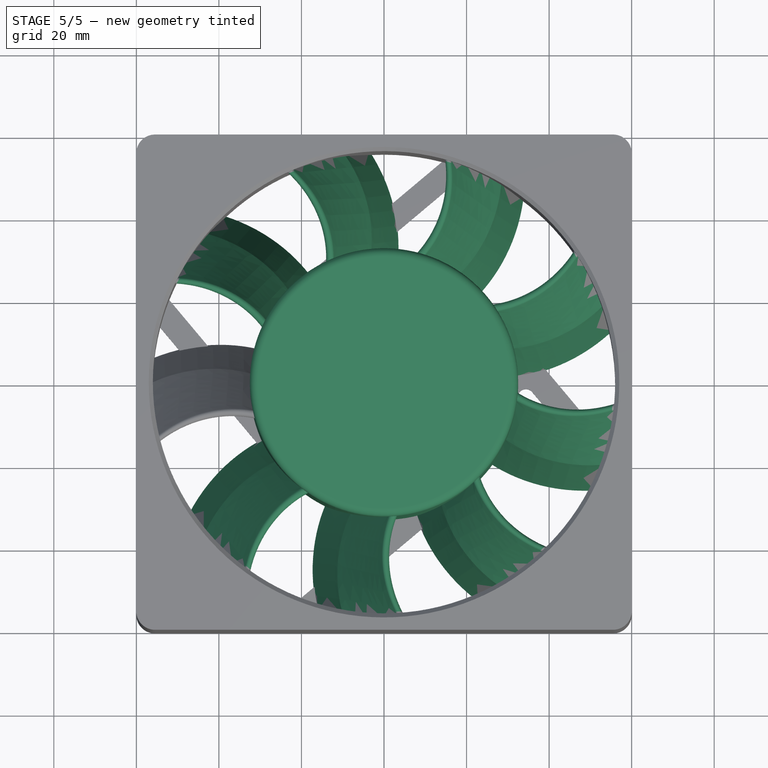
[diagram: stage 5 of 5 — top view after this stage's code; geometry added in this stage tinted green]
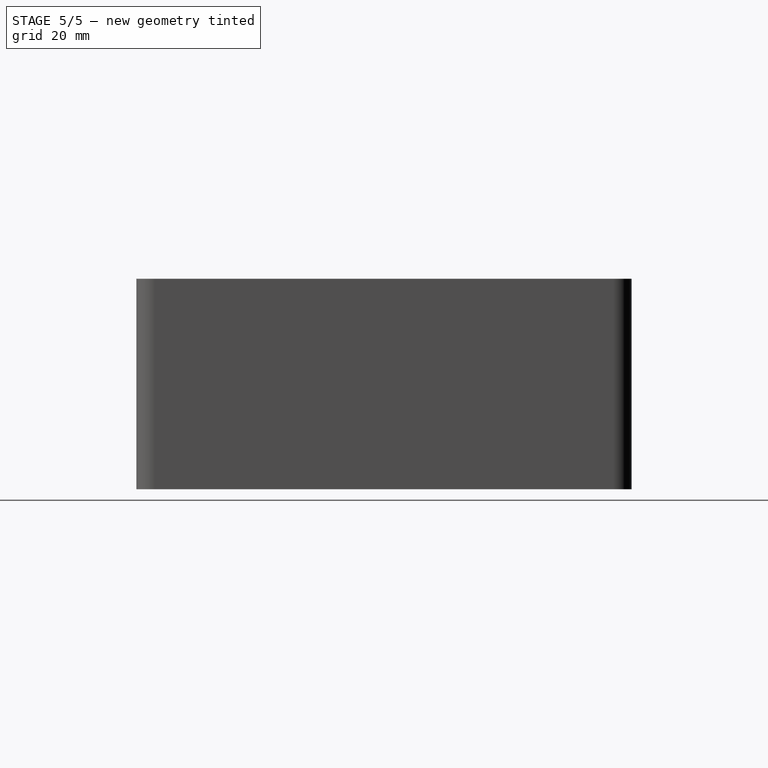
[diagram: stage 5 of 5 — right view after this stage's code; geometry added in this stage tinted green]
FEATURE [Spreadsheet::Sheet] Spreadsheet  label="Spreadsheet_Fan_dim"
  cells = C2='Helper dimensions  (do not change); A3='Diameter inner Motor Housing (Di); B3(Di)=65; C3='Diameter outer Motor Housing (Dom); D3(Dom)=112; A4='Length Fan Housing (Lh); B4(Lh)=120; C4='outer Blade Diameter (Do); D4(Do)==B4 - 2 * B5 - 2; A5='Frame thicknes (T); B5(T)=2; A6='Fan Height (H); B6(H)=50; C6='inner Fan height (Hi); D6(Hi)==B6 - 1 - 2; E6='minus 1 mm back minus 2 mm fillet; A7='Drill hole distance (Ldh); B7(Ldh)=105; C7='Length help plane outer Blade sketch (ho); D7(ho)==tan(360 / B9 / 2) * D4; A8='Drill hole diameter (Ddh); B8(Ddh)=4.5; C8='Dist. help plane outer Blade sketch (do); D8(do)==Do / 2; A9='No Blades; B9(n)=9; C9='Length help plane inner Blade sketch (hi); D9(hi)==sin(360 / B9 / 2) * B3; A10='Outer Housing Groove Angle (GrAngle)\n(80° for excluding drill holes)\n(95° for a complete groove); B10(GrAngle)=80; C10='Dist. help plane inner Blade sketch (di); D10(di)==cos(360 / B9 / 2) * B3 / 2
FEATURE [Sketcher::SketchObject] Sketch  label="Sketch_InnerCylinder001"
  FullyConstrained = true
  MapMode = 5
  Support = -> [XY_Plane]
  expr: Constraints[1] = Spreadsheet.B3
  sketch-geometry (1):
    g0: Circle CenterX=0 CenterY=0 CenterZ=0 NormalX=0 NormalY=0 NormalZ=1 AngleXU=0 Radius=32.5
  constraints (2):
    c: Coincident(g0,g-1)
    c: Diameter(g0) = 65
FEATURE [PartDesign::Pad] Pad
  AllowMultiFace = false
  Direction = (0,0,1)
  Length = 49
  Length2 = 100
  Profile = -> Sketch
  Type = 0
  expr: Length = Spreadsheet.B6 - 1
FEATURE [PartDesign::Fillet] Fillet  label="Fillet_InnerCylinder"
  Base = -> Pad [Edge3]
  BaseFeature = -> Pad
  Radius = 2
  SupportTransform = false
  UseAllEdges = false
FEATURE [PartDesign::Groove] Groove  label="Groove_Blade"
  AllowMultiFace = false
  Angle = 360
  Axis = (-2e-16,3e-16,1)
  Base = (0,0,0)
  BaseFeature = -> AdditivePipe
  Placement = pos=(-30.54,6.8e-15,-6.8e-15) rot=(0.57735,0.57735,0.57735;2.0944rad)
  Profile = -> Sketch007
  ReferenceAxis = -> Sketch007 [V_Axis]
FEATURE [PartDesign::Body] Body002  label="Body_Blade"
  Group = -> [DatumPlane,DatumPlane001,Sketch005,Sketch006,Sketch007,Sketch008,AdditivePipe,Groove]
  Origin = -> Origin002
  Tip = -> Groove
FEATURE [Part::FeaturePython] Array  # Draft array (typed FeaturePython)
  Angle = 360
  ArrayType = 1
  Axis = (0,0,1)
  Base = -> Groove
  Center = (0,0,0)
  Count = 9
  Fuse = false
  IntervalAxis = (0,0,0)
  IntervalX = (1,0,0)
  IntervalY = (0,1,0)
  IntervalZ = (0,0,1)
  NumberPolar = 9
  NumberX = 2
  NumberY = 2
  NumberZ = 1
  expr: NumberPolar = Spreadsheet.n
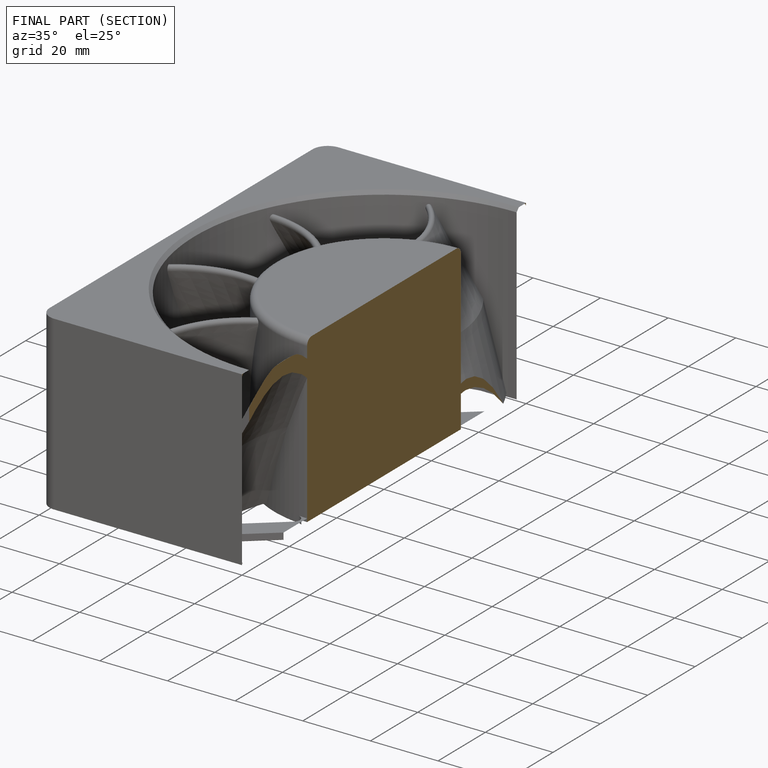
[diagram: finished part — half-section view (interior)]
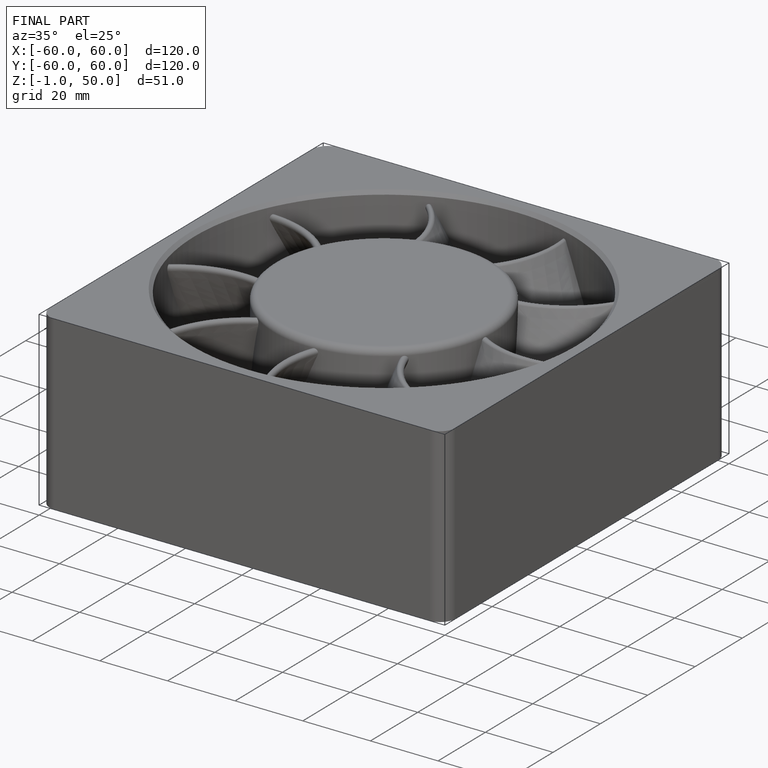
[diagram: finished part — iso view with bounding-box wireframe]
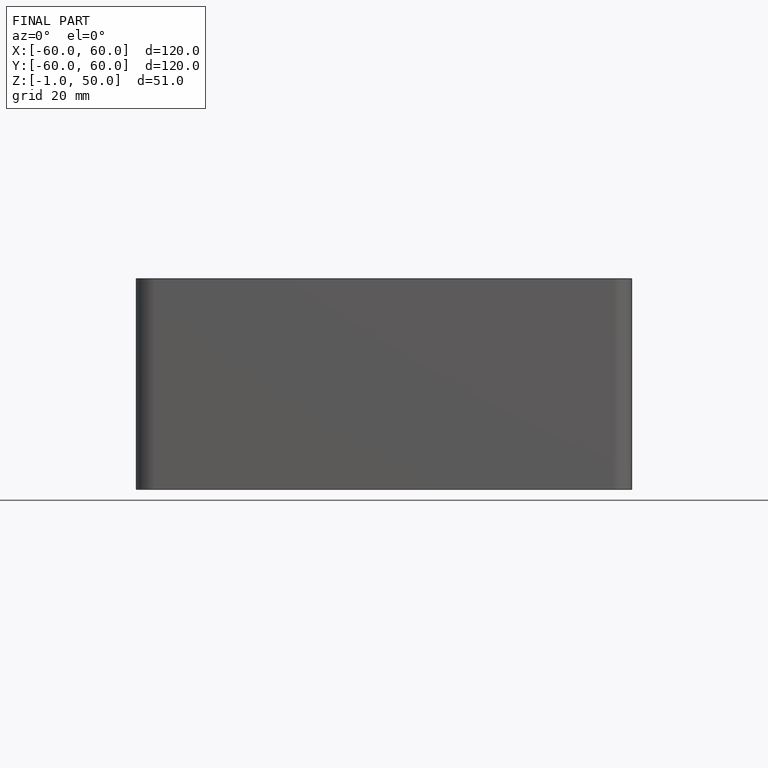
[diagram: finished part — front view with bounding-box wireframe]
